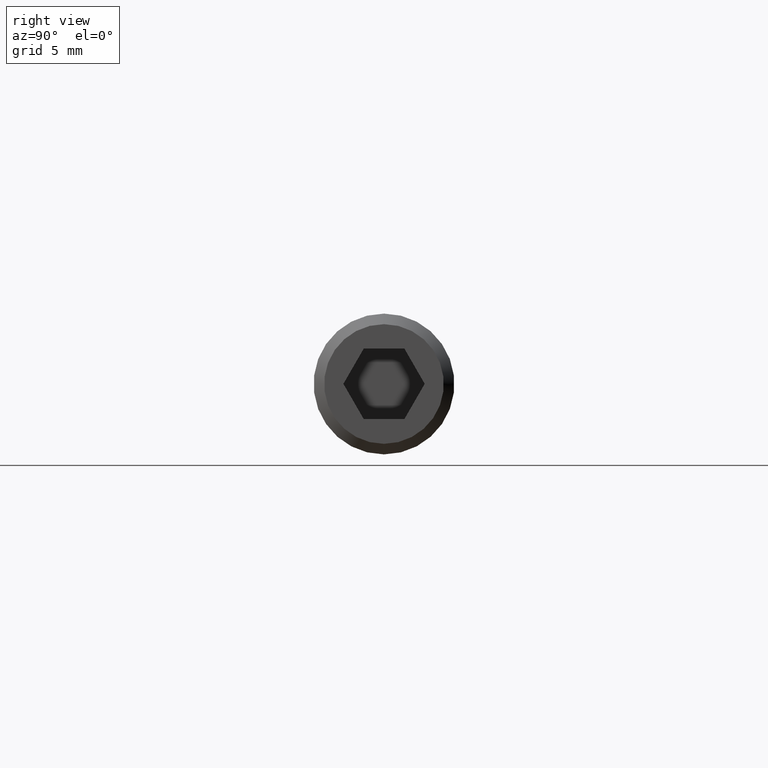
[diagram: clean part render]
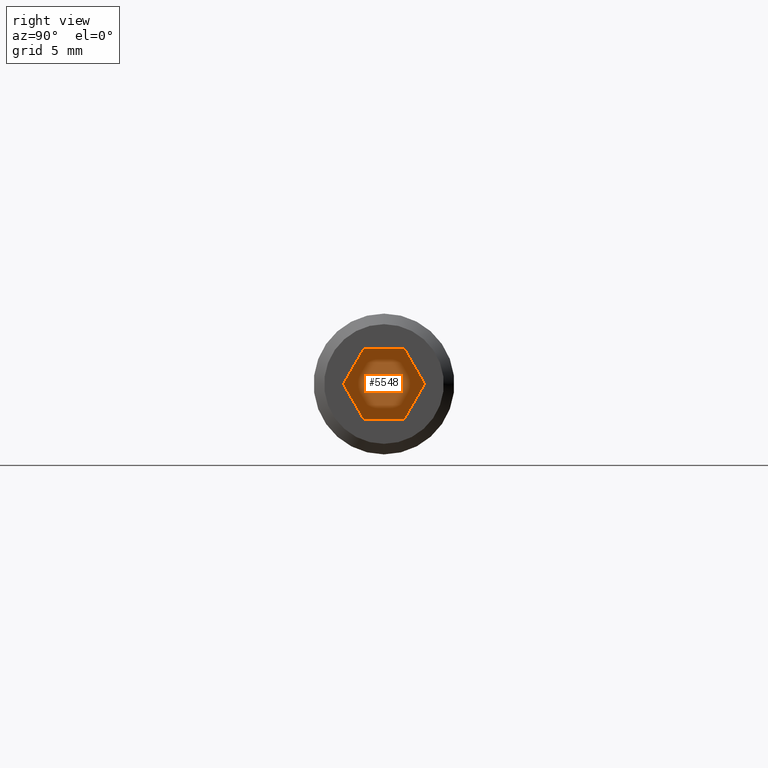
[diagram: same view with one face highlighted and labeled with its STEP entity id]
A machine part, right view. The second image highlights one B-rep face of the part: STEP entity #5548.
In plain terms, the highlighted planar face has unit normal (1, -0, 0).
Its self-contained STEP definition (entity closure, byte-faithful):
#124 = EDGE_CURVE ( 'NONE', #9687, #11060, #2073, .T. ) ;
#636 = VECTOR ( 'NONE', #4197, 1000.000000000000000 ) ;
#739 = CARTESIAN_POINT ( 'NONE',  ( 35.00000000000000000, -1.154700538379251000, 1.999999999999999600 ) ) ;
#747 = CARTESIAN_POINT ( 'NONE',  ( 35.00000000000000000, -1.154700538379252400, -2.000000000000000000 ) ) ;
#818 = DIRECTION ( 'NONE',  ( 0.0000000000000000000, -0.4999999999999999400, -0.8660254037844386000 ) ) ;
#2073 = LINE ( 'NONE', #4315, #636 ) ;
#2075 = CARTESIAN_POINT ( 'NONE',  ( 35.00000000000000000, 1.154700538379252100, 1.999999999999999600 ) ) ;
#2158 = CARTESIAN_POINT ( 'NONE',  ( 35.00000000000000000, 1.154700538379252400, -2.000000000000000000 ) ) ;
#2232 = VECTOR ( 'NONE', #10768, 1000.000000000000000 ) ;
#2256 = EDGE_CURVE ( 'NONE', #11060, #10289, #6374, .T. ) ;
#3019 = CARTESIAN_POINT ( 'NONE',  ( 35.00000000000000000, 1.154700538379252100, 1.999999999999999600 ) ) ;
#3292 = VERTEX_POINT ( 'NONE', #10796 ) ;
#3953 = EDGE_CURVE ( 'NONE', #3292, #9125, #9070, .T. ) ;
#4191 = CARTESIAN_POINT ( 'NONE',  ( 35.00000000000000000, -2.309401076758502500, 1.256016596573813500E-016 ) ) ;
#4197 = DIRECTION ( 'NONE',  ( 0.0000000000000000000, -0.4999999999999997200, 0.8660254037844388200 ) ) ;
#4298 = EDGE_LOOP ( 'NONE', ( #8768, #8859, #8952, #7760, #7106, #7437 ) ) ;
#4315 = CARTESIAN_POINT ( 'NONE',  ( 35.00000000000000000, 2.309401076758503400, -1.190619091596349400E-015 ) ) ;
#4697 = CARTESIAN_POINT ( 'NONE',  ( 35.00000000000000000, -3.464101615137753900, -2.000000000000000000 ) ) ;
#5078 = VECTOR ( 'NONE', #818, 1000.000000000000100 ) ;
#5548 = ADVANCED_FACE ( 'NONE', ( #6613 ), #8358, .T. ) ;
#5751 = VERTEX_POINT ( 'NONE', #4191 ) ;
#5835 = EDGE_CURVE ( 'NONE', #10289, #5751, #9926, .T. ) ;
#6374 = LINE ( 'NONE', #3019, #10087 ) ;
#6613 = FACE_OUTER_BOUND ( 'NONE', #4298, .T. ) ;
#6828 = DIRECTION ( 'NONE',  ( 0.0000000000000000000, -1.000000000000000000, 0.0000000000000000000 ) ) ;
#7106 = ORIENTED_EDGE ( 'NONE', *, *, #124, .T. ) ;
#7437 = ORIENTED_EDGE ( 'NONE', *, *, #2256, .T. ) ;
#7750 = LINE ( 'NONE', #2158, #8025 ) ;
#7760 = ORIENTED_EDGE ( 'NONE', *, *, #11248, .T. ) ;
#7917 = AXIS2_PLACEMENT_3D ( 'NONE', #4697, #11124, #10197 ) ;
#8025 = VECTOR ( 'NONE', #8636, 1000.000000000000100 ) ;
#8259 = CARTESIAN_POINT ( 'NONE',  ( 35.00000000000000000, -1.154700538379251000, 1.999999999999999600 ) ) ;
#8358 = PLANE ( 'NONE',  #7917 ) ;
#8636 = DIRECTION ( 'NONE',  ( 0.0000000000000000000, 0.4999999999999999400, 0.8660254037844386000 ) ) ;
#8637 = CARTESIAN_POINT ( 'NONE',  ( 35.00000000000000000, 1.154700538379252400, -2.000000000000000000 ) ) ;
#8712 = EDGE_CURVE ( 'NONE', #5751, #3292, #9867, .T. ) ;
#8768 = ORIENTED_EDGE ( 'NONE', *, *, #5835, .T. ) ;
#8852 = CARTESIAN_POINT ( 'NONE',  ( 35.00000000000000000, 2.309401076758503400, -1.190619091596349400E-015 ) ) ;
#8859 = ORIENTED_EDGE ( 'NONE', *, *, #8712, .T. ) ;
#8952 = ORIENTED_EDGE ( 'NONE', *, *, #3953, .T. ) ;
#9070 = LINE ( 'NONE', #747, #10496 ) ;
#9125 = VERTEX_POINT ( 'NONE', #8637 ) ;
#9687 = VERTEX_POINT ( 'NONE', #8852 ) ;
#9826 = CARTESIAN_POINT ( 'NONE',  ( 35.00000000000000000, -2.309401076758502500, 1.256016596573813500E-016 ) ) ;
#9867 = LINE ( 'NONE', #9826, #2232 ) ;
#9926 = LINE ( 'NONE', #739, #5078 ) ;
#9988 = DIRECTION ( 'NONE',  ( 0.0000000000000000000, 1.000000000000000000, 0.0000000000000000000 ) ) ;
#10087 = VECTOR ( 'NONE', #6828, 1000.000000000000000 ) ;
#10197 = DIRECTION ( 'NONE',  ( 0.0000000000000000000, 0.0000000000000000000, -1.000000000000000000 ) ) ;
#10289 = VERTEX_POINT ( 'NONE', #8259 ) ;
#10496 = VECTOR ( 'NONE', #9988, 1000.000000000000000 ) ;
#10768 = DIRECTION ( 'NONE',  ( 0.0000000000000000000, 0.4999999999999995600, -0.8660254037844389300 ) ) ;
#10796 = CARTESIAN_POINT ( 'NONE',  ( 35.00000000000000000, -1.154700538379252400, -2.000000000000000000 ) ) ;
#11060 = VERTEX_POINT ( 'NONE', #2075 ) ;
#11124 = DIRECTION ( 'NONE',  ( 1.000000000000000000, -0.0000000000000000000, 0.0000000000000000000 ) ) ;
#11248 = EDGE_CURVE ( 'NONE', #9125, #9687, #7750, .T. ) ;